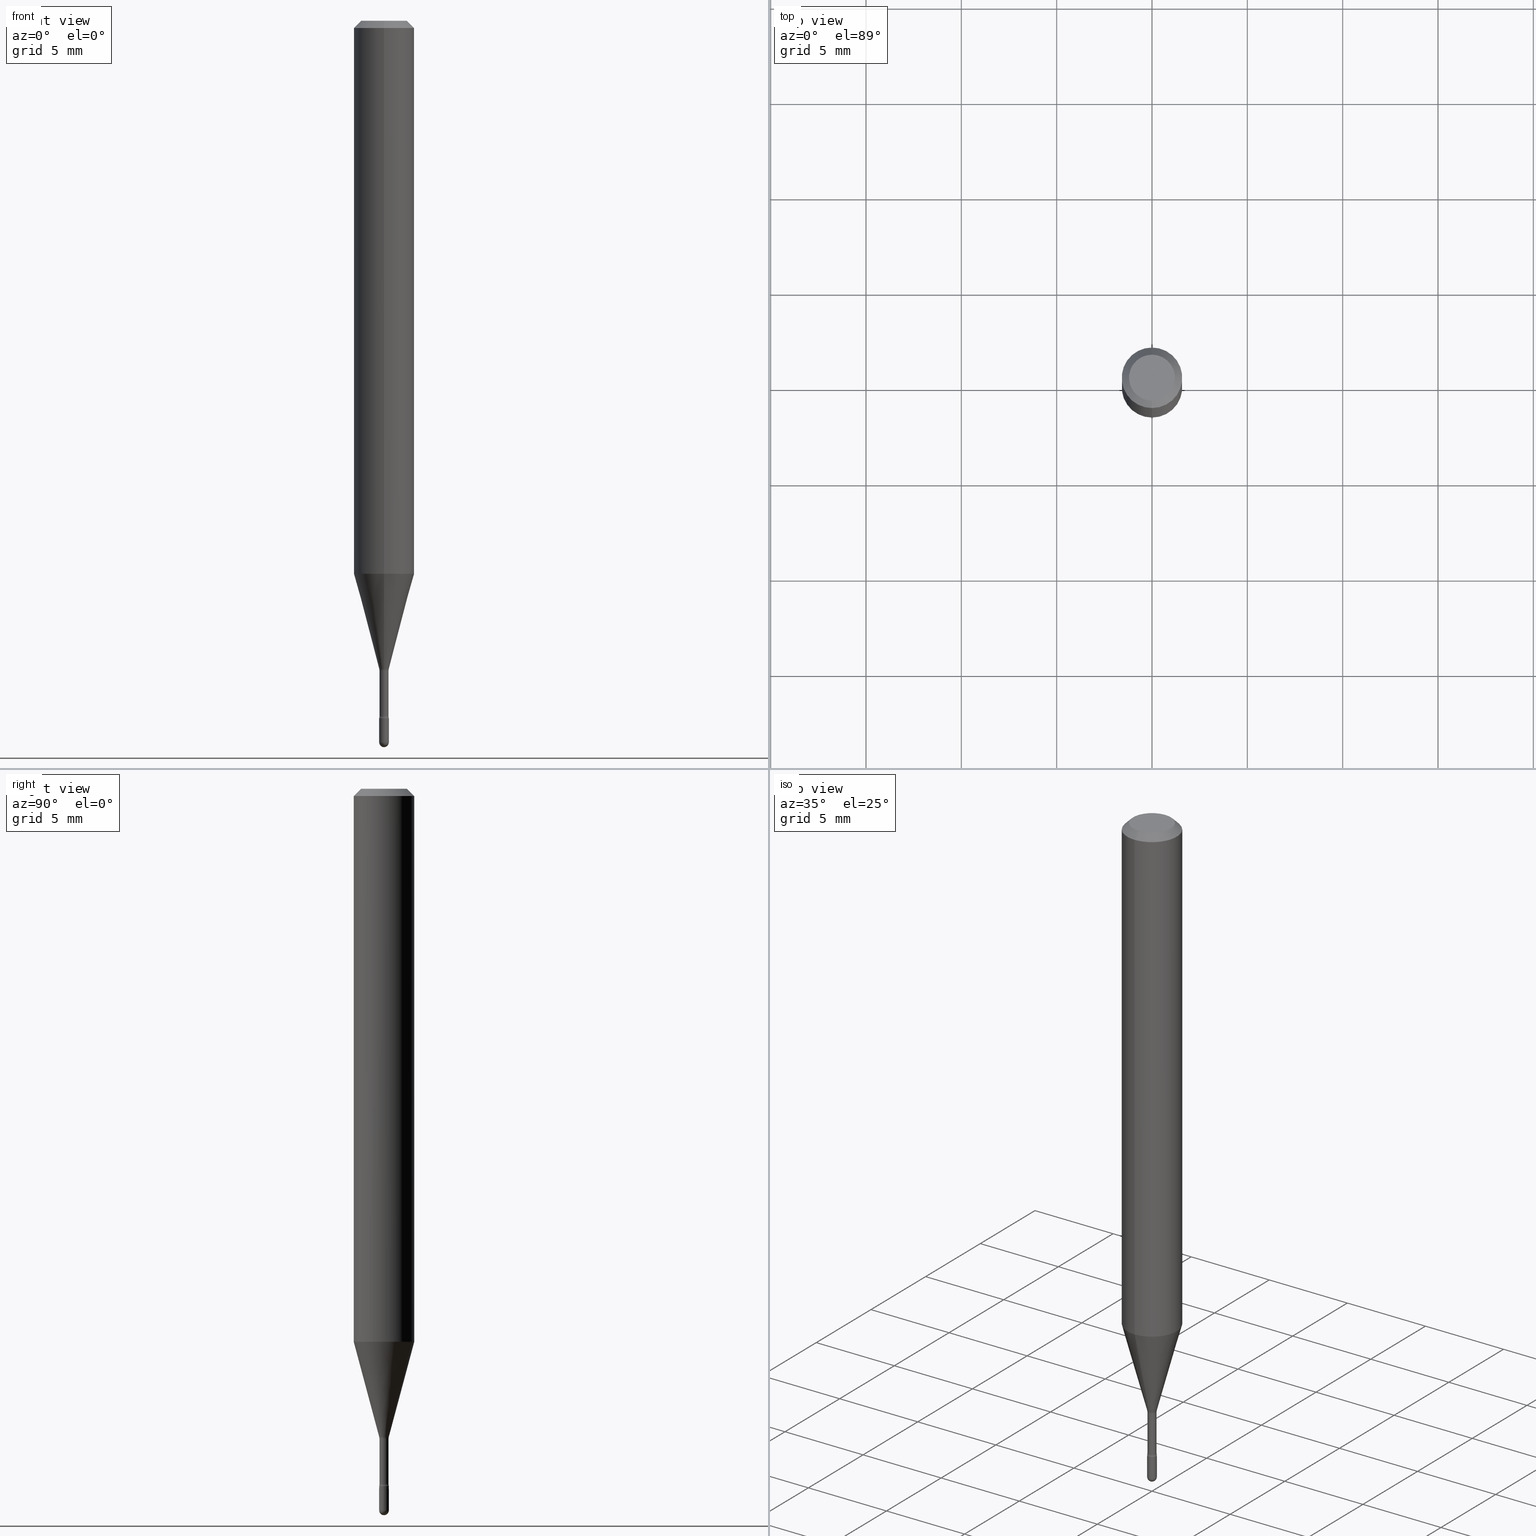
[diagram: canonical four-view strip — front | top / right | iso, engineering-drawing reading convention]
A machine part, canonical four-view strip (front | top / right | iso — engineering-drawing reading convention). The complete STEP part file that produces these views, byte-faithful:
ISO-10303-21;
HEADER;
FILE_DESCRIPTION (( 'STEP AP203' ),
    '1' );
FILE_NAME ('09303.STEP',
    '2024-04-09T22:17:44',
    ( '' ),
    ( '' ),
    'SwSTEP 2.0',
    'SolidWorks 2023',
    '' );
FILE_SCHEMA (( 'CONFIG_CONTROL_DESIGN' ));
ENDSEC;

DATA;
#1 = CARTESIAN_POINT ( 'NONE',  ( -3.773273898774340269E-16, -0.04749999999999999362, 8.309781393348443277E-17 ) ) ;
#2 = ORIENTED_EDGE ( 'NONE', *, *, #483, .F. ) ;
#3 = ORIENTED_EDGE ( 'NONE', *, *, #20, .T. ) ;
#4 = ORIENTED_EDGE ( 'NONE', *, *, #99, .F. ) ;
#5 = ORIENTED_EDGE ( 'NONE', *, *, #40, .F. ) ;
#6 = DIRECTION ( 'NONE',  ( 7.105427357601000281E-15, 1.000000000000000000, 0.000000000000000000 ) ) ;
#7 = ORIENTED_EDGE ( 'NONE', *, *, #388, .F. ) ;
#8 = ADVANCED_FACE ( 'NONE', ( #500 ), #180, .T. ) ;
#9 = VECTOR ( 'NONE', #56, 39.37007874015748143 ) ;
#10 = CIRCLE ( 'NONE', #287, 0.01500000000000002720 ) ;
#11 = CARTESIAN_POINT ( 'NONE',  ( 3.643748521215853910E-29, -5.202307194876288105E-15, -1.490000000000000213 ) ) ;
#12 = ORIENTED_EDGE ( 'NONE', *, *, #273, .T. ) ;
#13 = ORIENTED_EDGE ( 'NONE', *, *, #63, .F. ) ;
#14 = DIRECTION ( 'NONE',  ( -6.982962677686265922E-15, -1.000000000000000000, 4.370956789862821150E-15 ) ) ;
#15 = PERSON_AND_ORGANIZATION_ROLE ( 'classification_officer' ) ;
#16 = EDGE_CURVE ( 'NONE', #125, #86, #222, .T. ) ;
#17 = DIRECTION ( 'NONE',  ( 1.000000000000000000, -6.982962677686265922E-15, 4.876176775795935793E-29 ) ) ;
#18 = TOROIDAL_SURFACE ( 'NONE', #306, 0.02440000000000002583, 0.01500000000000004108 ) ;
#19 = VECTOR ( 'NONE', #561, 39.37007874015748143 ) ;
#20 = EDGE_CURVE ( 'NONE', #350, #94, #62, .T. ) ;
#21 = CARTESIAN_POINT ( 'NONE',  ( 3.511209574477321282E-29, -5.013061083618882892E-15, -1.435799999999999965 ) ) ;
#22 = DIRECTION ( 'NONE',  ( -2.445468806185136597E-29, 3.491481338843145583E-15, 1.000000000000000000 ) ) ;
#23 = COORDINATED_UNIVERSAL_TIME_OFFSET ( 5, 0, .BEHIND. ) ;
#24 = DIRECTION ( 'NONE',  ( -1.000000000000000000, 6.982962677686265133E-15, -4.883557194083112340E-29 ) ) ;
#25 = APPROVAL_DATE_TIME ( #108, #157 ) ;
#26 = EDGE_CURVE ( 'NONE', #217, #350, #147, .T. ) ;
#27 = COORDINATED_UNIVERSAL_TIME_OFFSET ( 5, 0, .BEHIND. ) ;
#28 = AXIS2_PLACEMENT_3D ( 'NONE', #560, #329, #553 ) ;
#29 = AXIS2_PLACEMENT_3D ( 'NONE', #512, #244, #332 ) ;
#30 = FACE_OUTER_BOUND ( 'NONE', #206, .T. ) ;
#31 = CARTESIAN_POINT ( 'NONE',  ( 6.892264536876495998E-17, 0.009399999999994973141, -1.435799999999999965 ) ) ;
#32 = ORIENTED_EDGE ( 'NONE', *, *, #470, .F. ) ;
#33 = CARTESIAN_POINT ( 'NONE',  ( -1.169113584055446105E-44, 1.669184350826100908E-30, 4.780733988912460139E-16 ) ) ;
#34 = VECTOR ( 'NONE', #379, 39.37007874015748143 ) ;
#35 = ORIENTED_EDGE ( 'NONE', *, *, #514, .T. ) ;
#36 = CIRCLE ( 'NONE', #262, 0.01000000000000000021 ) ;
#37 = CARTESIAN_POINT ( 'NONE',  ( 2.572559502513361655E-16, 0.009911112605659307129, -1.338092501787273347 ) ) ;
#38 = ORIENTED_EDGE ( 'NONE', *, *, #130, .T. ) ;
#39 = EDGE_LOOP ( 'NONE', ( #3, #471, #385, #174 ) ) ;
#40 = EDGE_CURVE ( 'NONE', #519, #526, #535, .T. ) ;
#41 = DIRECTION ( 'NONE',  ( 1.000000000000000000, -6.982962677686235945E-15, 0.000000000000000000 ) ) ;
#42 = ORIENTED_EDGE ( 'NONE', *, *, #283, .T. ) ;
#43 = EDGE_LOOP ( 'NONE', ( #218, #302, #337, #76 ) ) ;
#44 = AXIS2_PLACEMENT_3D ( 'NONE', #331, #564, #468 ) ;
#45 = ORIENTED_EDGE ( 'NONE', *, *, #343, .T. ) ;
#46 = ORIENTED_EDGE ( 'NONE', *, *, #242, .F. ) ;
#47 = VERTEX_POINT ( 'NONE', #441 ) ;
#48 = DIRECTION ( 'NONE',  ( -2.445472610723861690E-29, 3.491475890527150421E-15, 1.000000000000000000 ) ) ;
#49 = PERSON_AND_ORGANIZATION_ROLE ( 'design_supplier' ) ;
#50 =( LENGTH_UNIT ( ) NAMED_UNIT ( * ) SI_UNIT ( $, .METRE. ) );
#51 = TOROIDAL_SURFACE ( 'NONE', #123, 0.02440000000000002583, 0.01500000000000004108 ) ;
#52 = DIRECTION ( 'NONE',  ( -2.445468806185136597E-29, 3.491481338843145583E-15, 1.000000000000000000 ) ) ;
#53 = CIRCLE ( 'NONE', #373, 0.009399999999999998634 ) ;
#54 = EDGE_LOOP ( 'NONE', ( #4, #7, #168, #12 ) ) ;
#55 = CARTESIAN_POINT ( 'NONE',  ( 3.643748521215853910E-29, -5.202307194876288105E-15, -1.490000000000000213 ) ) ;
#56 = DIRECTION ( 'NONE',  ( -2.445472610723861690E-29, 3.491475890527150815E-15, 1.000000000000000000 ) ) ;
#57 = SECURITY_CLASSIFICATION_LEVEL ( 'unclassified' ) ;
#58 = CARTESIAN_POINT ( 'NONE',  ( 3.511209574477321282E-29, -5.013061083618882892E-15, -1.435799999999999965 ) ) ;
#59 = COORDINATED_UNIVERSAL_TIME_OFFSET ( 5, 0, .BEHIND. ) ;
#60 = CARTESIAN_POINT ( 'NONE',  ( -6.563984917025085146E-17, -0.009399999999999993430, 5.108932722622012400E-16 ) ) ;
#61 = CALENDAR_DATE ( 2024, 9, 4 ) ;
#62 = CIRCLE ( 'NONE', #506, 0.06250000000000000000 ) ;
#63 = EDGE_CURVE ( 'NONE', #217, #258, #114, .T. ) ;
#64 = EDGE_CURVE ( 'NONE', #344, #481, #192, .T. ) ;
#65 = CALENDAR_DATE ( 2024, 9, 4 ) ;
#66 = CC_DESIGN_SECURITY_CLASSIFICATION ( #98, ( #158 ) ) ;
#67 = MANIFOLD_SOLID_BREP ( 'Body-Move/Copy2[2]', #364 ) ;
#68 = PLANE ( 'NONE',  #109 ) ;
#69 = PERSON_AND_ORGANIZATION_ROLE ( 'design_owner' ) ;
#70 = AXIS2_PLACEMENT_3D ( 'NONE', #111, #459, #233 ) ;
#71 = LINE ( 'NONE', #241, #181 ) ;
#72 = PERSON_AND_ORGANIZATION ( #234, #198 ) ;
#73 = DIRECTION ( 'NONE',  ( -2.445472610723861690E-29, 3.491475890527150421E-15, 1.000000000000000000 ) ) ;
#74 = CARTESIAN_POINT ( 'NONE',  ( 3.521480559442361462E-29, -5.027725282359097426E-15, -1.440000000000000169 ) ) ;
#75 = CC_DESIGN_PERSON_AND_ORGANIZATION_ASSIGNMENT ( #72, #159, ( #305 ) ) ;
#76 = ORIENTED_EDGE ( 'NONE', *, *, #26, .F. ) ;
#77 = CC_DESIGN_APPROVAL ( #196, ( #305 ) ) ;
#78 = ORIENTED_EDGE ( 'NONE', *, *, #283, .F. ) ;
#79 = CARTESIAN_POINT ( 'NONE',  ( -4.364351673553637142E-16, -0.06250000000000398293, -1.141828102118092936 ) ) ;
#80 = DIRECTION ( 'NONE',  ( 1.000000000000000000, 0.000000000000000000, 0.000000000000000000 ) ) ;
#81 = CARTESIAN_POINT ( 'NONE',  ( 4.364351673553919652E-16, 0.06249999999999995143, -0.01500000000000030129 ) ) ;
#82 = ORIENTED_EDGE ( 'NONE', *, *, #470, .T. ) ;
#83 = FACE_OUTER_BOUND ( 'NONE', #338, .T. ) ;
#84 = DIRECTION ( 'NONE',  ( -2.445468806185136597E-29, 3.491481338843145583E-15, 1.000000000000000000 ) ) ;
#85 = PERSON_AND_ORGANIZATION ( #234, #198 ) ;
#86 = VERTEX_POINT ( 'NONE', #179 ) ;
#87 = EDGE_CURVE ( 'NONE', #86, #393, #294, .T. ) ;
#88 = VERTEX_POINT ( 'NONE', #559 ) ;
#89 = AXIS2_PLACEMENT_3D ( 'NONE', #486, #563, #6 ) ;
#90 = ORIENTED_EDGE ( 'NONE', *, *, #514, .F. ) ;
#91 = APPROVAL_PERSON_ORGANIZATION ( #85, #196, #525 ) ;
#92 = CARTESIAN_POINT ( 'NONE',  ( 3.643748521215853910E-29, -5.202307194876288105E-15, -1.490000000000000213 ) ) ;
#93 = EDGE_LOOP ( 'NONE', ( #46, #177, #396, #251 ) ) ;
#94 = VERTEX_POINT ( 'NONE', #169 ) ;
#95 = DIMENSIONAL_EXPONENTS ( 1.000000000000000000, 0.000000000000000000, 0.000000000000000000, 0.000000000000000000, 0.000000000000000000, 0.000000000000000000, 0.000000000000000000 ) ;
#96 = CC_DESIGN_PERSON_AND_ORGANIZATION_ASSIGNMENT ( #227, #15, ( #98 ) ) ;
#97 = EDGE_LOOP ( 'NONE', ( #176, #127, #264, #32 ) ) ;
#98 = SECURITY_CLASSIFICATION ( '', '', #57 ) ;
#99 = EDGE_CURVE ( 'NONE', #121, #310, #394, .T. ) ;
#100 = APPROVAL_ROLE ( '' ) ;
#101 = DIRECTION ( 'NONE',  ( 6.982962677686265922E-15, 1.000000000000000000, -3.483106191921935554E-15 ) ) ;
#102 = COORDINATED_UNIVERSAL_TIME_OFFSET ( 5, 0, .BEHIND. ) ;
#103 = DIRECTION ( 'NONE',  ( -2.445472610723861690E-29, 3.491475890527150421E-15, 1.000000000000000000 ) ) ;
#104 = EDGE_CURVE ( 'NONE', #397, #526, #53, .T. ) ;
#105 = DIRECTION ( 'NONE',  ( -2.445472610723861130E-29, 3.491475890527150815E-15, 1.000000000000000000 ) ) ;
#106 = PRODUCT_RELATED_PRODUCT_CATEGORY ( 'detail', '', ( #376 ) ) ;
#107 = VECTOR ( 'NONE', #119, 39.37007874015748143 ) ;
#108 = DATE_AND_TIME ( #504, #550 ) ;
#109 = AXIS2_PLACEMENT_3D ( 'NONE', #543, #322, #195 ) ;
#110 = PERSON_AND_ORGANIZATION ( #234, #198 ) ;
#111 = CARTESIAN_POINT ( 'NONE',  ( 3.521475080906597305E-29, -5.027733127934130649E-15, -1.440000000000000169 ) ) ;
#112 = SHAPE_DEFINITION_REPRESENTATION ( #511, #473 ) ;
#113 = DIRECTION ( 'NONE',  ( -6.982962677686265922E-15, -1.000000000000000000, 3.491475890527151998E-15 ) ) ;
#114 = CIRCLE ( 'NONE', #261, 0.009911112605663978739 ) ;
#115 = CARTESIAN_POINT ( 'NONE',  ( 4.440892098500625669E-16, 0.06250000000000000000, 2.598561557332991619E-16 ) ) ;
#116 = CIRCLE ( 'NONE', #70, 0.01000000000000000021 ) ;
#117 = DIRECTION ( 'NONE',  ( -2.445472610723861690E-29, 3.491475890527150815E-15, 1.000000000000000000 ) ) ;
#118 = ADVANCED_FACE ( 'NONE', ( #83 ), #448, .T. ) ;
#119 = DIRECTION ( 'NONE',  ( -2.445472610723861690E-29, 3.491475890527150815E-15, 1.000000000000000000 ) ) ;
#120 = ORIENTED_EDGE ( 'NONE', *, *, #440, .T. ) ;
#121 = VERTEX_POINT ( 'NONE', #1 ) ;
#122 = CARTESIAN_POINT ( 'NONE',  ( 0.000000000000000000, 0.000000000000000000, 0.000000000000000000 ) ) ;
#123 = AXIS2_PLACEMENT_3D ( 'NONE', #228, #279, #489 ) ;
#124 =( GEOMETRIC_REPRESENTATION_CONTEXT ( 3 ) GLOBAL_UNCERTAINTY_ASSIGNED_CONTEXT ( ( #282 ) ) GLOBAL_UNIT_ASSIGNED_CONTEXT ( ( #276, #444, #185 ) ) REPRESENTATION_CONTEXT ( 'NONE', 'WORKASPACE' ) );
#125 = VERTEX_POINT ( 'NONE', #443 ) ;
#126 = AXIS2_PLACEMENT_3D ( 'NONE', #415, #200, #113 ) ;
#127 = ORIENTED_EDGE ( 'NONE', *, *, #375, .T. ) ;
#128 = CARTESIAN_POINT ( 'NONE',  ( 6.679101716144935847E-17, 0.009399999999999993430, 4.452535255202908864E-16 ) ) ;
#129 = EDGE_LOOP ( 'NONE', ( #435, #45, #558, #175 ) ) ;
#130 = EDGE_CURVE ( 'NONE', #258, #217, #399, .T. ) ;
#131 = ORIENTED_EDGE ( 'NONE', *, *, #510, .F. ) ;
#132 = VERTEX_POINT ( 'NONE', #475 ) ;
#133 = AXIS2_PLACEMENT_3D ( 'NONE', #55, #224, #267 ) ;
#134 = VECTOR ( 'NONE', #552, 39.37007874015748143 ) ;
#135 = ADVANCED_FACE ( 'NONE', ( #529 ), #18, .F. ) ;
#136 = ORIENTED_EDGE ( 'NONE', *, *, #528, .T. ) ;
#137 = CARTESIAN_POINT ( 'NONE',  ( 4.440892098500906207E-16, 0.06249999999999993755, -0.01500000000000030129 ) ) ;
#138 = DESIGN_CONTEXT ( 'detailed design', #445, 'design' ) ;
#139 = EDGE_CURVE ( 'NONE', #47, #132, #408, .T. ) ;
#140 = ORIENTED_EDGE ( 'NONE', *, *, #16, .F. ) ;
#141 = CARTESIAN_POINT ( 'NONE',  ( 3.281757481429678345E-29, -4.685479927627892670E-15, -1.341974787463811269 ) ) ;
#142 = CARTESIAN_POINT ( 'NONE',  ( -1.169113584055446105E-44, 1.669184350826100908E-30, 4.780733988912460139E-16 ) ) ;
#143 = AXIS2_PLACEMENT_3D ( 'NONE', #11, #490, #184 ) ;
#144 = CARTESIAN_POINT ( 'NONE',  ( 3.511204111920619566E-29, -5.013068906310988441E-15, -1.435799999999999965 ) ) ;
#145 = EDGE_LOOP ( 'NONE', ( #347, #499, #522, #263 ) ) ;
#146 = CC_DESIGN_APPROVAL ( #352, ( #98 ) ) ;
#147 = LINE ( 'NONE', #278, #354 ) ;
#148 = DIRECTION ( 'NONE',  ( -1.000000000000000000, 6.982962677686265922E-15, -4.883557194083112340E-29 ) ) ;
#149 = EDGE_CURVE ( 'NONE', #538, #88, #372, .T. ) ;
#150 = CARTESIAN_POINT ( 'NONE',  ( 6.982962677689787249E-17, 0.009999999999994971245, -1.440000000000000169 ) ) ;
#151 = LENGTH_MEASURE_WITH_UNIT ( LENGTH_MEASURE( 0.02539999999999999897 ), #50 );
#152 = DATE_AND_TIME ( #324, #400 ) ;
#153 = CALENDAR_DATE ( 2024, 9, 4 ) ;
#154 = CARTESIAN_POINT ( 'NONE',  ( 7.105427357604537090E-17, 0.009999999999994993796, -1.440000000000000169 ) ) ;
#155 = AXIS2_PLACEMENT_3D ( 'NONE', #367, #52, #493 ) ;
#156 = FACE_OUTER_BOUND ( 'NONE', #97, .T. ) ;
#157 = APPROVAL ( #231, 'UNSPECIFIED' ) ;
#158 = PRODUCT_DEFINITION_FORMATION_WITH_SPECIFIED_SOURCE ( 'ANY', '', #376, .NOT_KNOWN. ) ;
#159 = PERSON_AND_ORGANIZATION_ROLE ( 'creator' ) ;
#160 = CARTESIAN_POINT ( 'NONE',  ( -4.364351673553912750E-16, -0.06250000000000005551, -0.01499999999999986587 ) ) ;
#161 = CARTESIAN_POINT ( 'NONE',  ( 3.281762587024725680E-29, -4.685472616125192848E-15, -1.341974787463811269 ) ) ;
#162 = COORDINATED_UNIVERSAL_TIME_OFFSET ( 5, 0, .BEHIND. ) ;
#163 = AXIS2_PLACEMENT_3D ( 'NONE', #309, #22, #502 ) ;
#164 = TOROIDAL_SURFACE ( 'NONE', #272, 0.02440000000000000155, 0.01500000000000002720 ) ;
#165 = DIRECTION ( 'NONE',  ( -6.982962677686266711E-15, -1.000000000000000000, 3.491475890527150421E-15 ) ) ;
#166 = ORIENTED_EDGE ( 'NONE', *, *, #375, .F. ) ;
#167 = DIRECTION ( 'NONE',  ( 1.000000000000000000, -6.982962677686265922E-15, 4.883557194083112340E-29 ) ) ;
#168 = ORIENTED_EDGE ( 'NONE', *, *, #545, .T. ) ;
#169 = CARTESIAN_POINT ( 'NONE',  ( 4.440892098500903249E-16, 0.06249999999999600320, -1.141828102118093602 ) ) ;
#170 = CC_DESIGN_PERSON_AND_ORGANIZATION_ASSIGNMENT ( #110, #49, ( #158 ) ) ;
#171 = MECHANICAL_CONTEXT ( 'NONE', #465, 'mechanical' ) ;
#172 = CIRCLE ( 'NONE', #565, 0.009999999999999946432 ) ;
#173 = TOROIDAL_SURFACE ( 'NONE', #193, 0.02440000000000000155, 0.01500000000000002720 ) ;
#174 = ORIENTED_EDGE ( 'NONE', *, *, #225, .F. ) ;
#175 = ORIENTED_EDGE ( 'NONE', *, *, #273, .F. ) ;
#176 = ORIENTED_EDGE ( 'NONE', *, *, #130, .F. ) ;
#177 = ORIENTED_EDGE ( 'NONE', *, *, #207, .T. ) ;
#178 = ADVANCED_FACE ( 'NONE', ( #544 ), #51, .F. ) ;
#179 = CARTESIAN_POINT ( 'NONE',  ( -7.105427357597337501E-17, -0.01000000000000517836, -1.490000000000000213 ) ) ;
#180 = CONICAL_SURFACE ( 'NONE', #246, 0.06250000000000000000, 0.7853981633974483900 ) ;
#181 = VECTOR ( 'NONE', #202, 39.37007874015748143 ) ;
#182 = ADVANCED_FACE ( 'NONE', ( #407 ), #221, .T. ) ;
#183 = CARTESIAN_POINT ( 'NONE',  ( 0.000000000000000000, 0.000000000000000000, 0.000000000000000000 ) ) ;
#184 = DIRECTION ( 'NONE',  ( -7.105427357601000281E-15, -1.000000000000000000, 0.000000000000000000 ) ) ;
#185 =( NAMED_UNIT ( * ) SI_UNIT ( $, .STERADIAN. ) SOLID_ANGLE_UNIT ( ) );
#186 = VERTEX_POINT ( 'NONE', #451 ) ;
#187 = EDGE_CURVE ( 'NONE', #132, #86, #197, .T. ) ;
#188 = CARTESIAN_POINT ( 'NONE',  ( 2.792309349884605750E-29, -3.986665289671695629E-15, -1.141828102118093380 ) ) ;
#189 = DATE_AND_TIME ( #61, #496 ) ;
#190 = DIRECTION ( 'NONE',  ( 6.982962677686265922E-15, 1.000000000000000000, -3.491475890527150815E-15 ) ) ;
#191 = DIRECTION ( 'NONE',  ( 2.445472610723861690E-29, -3.491475890527150421E-15, -1.000000000000000000 ) ) ;
#192 = CIRCLE ( 'NONE', #89, 0.01500000000000004455 ) ;
#193 = AXIS2_PLACEMENT_3D ( 'NONE', #141, #235, #317 ) ;
#194 = DIRECTION ( 'NONE',  ( -2.445472610723861690E-29, 3.491475890527150421E-15, 1.000000000000000000 ) ) ;
#195 = DIRECTION ( 'NONE',  ( 1.000000000000000000, -6.982962677686265922E-15, 4.876176775795935793E-29 ) ) ;
#196 = APPROVAL ( #349, 'UNSPECIFIED' ) ;
#197 = CIRCLE ( 'NONE', #133, 0.01000000000000000021 ) ;
#198 = ORGANIZATION ( 'UNSPECIFIED', 'UNSPECIFIED', '' ) ;
#199 = DIRECTION ( 'NONE',  ( 6.982962677686265922E-15, 1.000000000000000000, -3.483106191921935554E-15 ) ) ;
#200 = DIRECTION ( 'NONE',  ( -2.445472610723861690E-29, 3.491475890527150421E-15, 1.000000000000000000 ) ) ;
#201 = ADVANCED_FACE ( 'NONE', ( #226 ), #362, .T. ) ;
#202 = DIRECTION ( 'NONE',  ( -2.445468806185136877E-29, 3.491481338843145188E-15, 1.000000000000000000 ) ) ;
#203 = FACE_OUTER_BOUND ( 'NONE', #145, .T. ) ;
#204 = AXIS2_PLACEMENT_3D ( 'NONE', #58, #48, #398 ) ;
#205 = AXIS2_PLACEMENT_3D ( 'NONE', #383, #247, #165 ) ;
#206 = EDGE_LOOP ( 'NONE', ( #316, #292, #403, #5 ) ) ;
#207 = EDGE_CURVE ( 'NONE', #344, #519, #457, .T. ) ;
#208 = DIRECTION ( 'NONE',  ( -2.445472610723861690E-29, 3.491475890527150421E-15, 1.000000000000000000 ) ) ;
#209 = DIRECTION ( 'NONE',  ( -6.982962677686265922E-15, -1.000000000000000000, 3.483106191921935554E-15 ) ) ;
#210 = VERTEX_POINT ( 'NONE', #137 ) ;
#211 = DIRECTION ( 'NONE',  ( 6.982962677686265922E-15, 1.000000000000000000, 0.000000000000000000 ) ) ;
#212 = EDGE_LOOP ( 'NONE', ( #447, #484, #136, #439 ) ) ;
#213 = DIRECTION ( 'NONE',  ( -6.982962677686265922E-15, -1.000000000000000000, 0.000000000000000000 ) ) ;
#214 = AXIS2_PLACEMENT_3D ( 'NONE', #92, #265, #41 ) ;
#215 = AXIS2_PLACEMENT_3D ( 'NONE', #284, #24, #404 ) ;
#216 = ORIENTED_EDGE ( 'NONE', *, *, #207, .F. ) ;
#217 = VERTEX_POINT ( 'NONE', #356 ) ;
#218 = ORIENTED_EDGE ( 'NONE', *, *, #63, .T. ) ;
#219 = CARTESIAN_POINT ( 'NONE',  ( 3.281762587024725680E-29, -4.685472616125192848E-15, -1.341974787463811269 ) ) ;
#220 = CC_DESIGN_PERSON_AND_ORGANIZATION_ASSIGNMENT ( #461, #69, ( #376 ) ) ;
#221 = CYLINDRICAL_SURFACE ( 'NONE', #381, 0.06250000000000000000 ) ;
#222 = CIRCLE ( 'NONE', #143, 0.009999999999999946432 ) ;
#223 = APPROVAL_PERSON_ORGANIZATION ( #456, #157, #413 ) ;
#224 = DIRECTION ( 'NONE',  ( -2.445468806185136597E-29, 3.491481338843145583E-15, 1.000000000000000000 ) ) ;
#225 = EDGE_CURVE ( 'NONE', #350, #310, #269, .T. ) ;
#226 = FACE_OUTER_BOUND ( 'NONE', #297, .T. ) ;
#227 = PERSON_AND_ORGANIZATION ( #234, #198 ) ;
#228 = CARTESIAN_POINT ( 'NONE',  ( 3.511204111920619566E-29, -5.013068906310988441E-15, -1.435799999999999965 ) ) ;
#229 = ADVANCED_FACE ( 'NONE', ( #203 ), #424, .T. ) ;
#230 = AXIS2_PLACEMENT_3D ( 'NONE', #237, #416, #199 ) ;
#231 = APPROVAL_STATUS ( 'not_yet_approved' ) ;
#232 = CARTESIAN_POINT ( 'NONE',  ( 3.668208916085812311E-31, -5.237213835790754425E-17, -0.01500000000000008271 ) ) ;
#233 = DIRECTION ( 'NONE',  ( 1.000000000000000000, -6.982962677686235945E-15, 0.000000000000000000 ) ) ;
#234 = PERSON ( 'UNSPECIFIED', 'UNSPECIFIED', 'UNSPECIFIED', ('UNSPECIFIED'), ('UNSPECIFIED'), ('UNSPECIFIED') ) ;
#235 = DIRECTION ( 'NONE',  ( -2.445472610723861690E-29, 3.491475890527150421E-15, 1.000000000000000000 ) ) ;
#236 = APPROVAL_DATE_TIME ( #505, #352 ) ;
#237 = CARTESIAN_POINT ( 'NONE',  ( 3.668208916085812311E-31, -5.237213835790754425E-17, -0.01500000000000008271 ) ) ;
#238 = AXIS2_PLACEMENT_3D ( 'NONE', #33, #73, #377 ) ;
#239 = AXIS2_PLACEMENT_3D ( 'NONE', #150, #105, #509 ) ;
#240 = PLANE ( 'NONE',  #239 ) ;
#241 = CARTESIAN_POINT ( 'NONE',  ( -0.01000000000000000021, 7.105427357601002007E-17, -4.918935090254906272E-31 ) ) ;
#242 = EDGE_CURVE ( 'NONE', #344, #397, #257, .T. ) ;
#243 = DIRECTION ( 'NONE',  ( -2.445472610723861690E-29, 3.491475890527150421E-15, 1.000000000000000000 ) ) ;
#244 = DIRECTION ( 'NONE',  ( -2.445472610723861690E-29, 3.491475890527150421E-15, 1.000000000000000000 ) ) ;
#245 = EDGE_CURVE ( 'NONE', #125, #47, #172, .T. ) ;
#246 = AXIS2_PLACEMENT_3D ( 'NONE', #532, #191, #101 ) ;
#247 = DIRECTION ( 'NONE',  ( -2.445472610723861690E-29, 3.491475890527150421E-15, 1.000000000000000000 ) ) ;
#248 = CONICAL_SURFACE ( 'NONE', #230, 0.06250000000000000000, 0.7853981633974483900 ) ;
#249 = CARTESIAN_POINT ( 'NONE',  ( 3.643748521215853910E-29, -5.202307194876288105E-15, -1.490000000000000213 ) ) ;
#250 = EDGE_LOOP ( 'NONE', ( #166, #13, #82, #566 ) ) ;
#251 = ORIENTED_EDGE ( 'NONE', *, *, #104, .F. ) ;
#252 = CARTESIAN_POINT ( 'NONE',  ( 3.668208916085812311E-31, -5.237213835790754425E-17, -0.01500000000000008271 ) ) ;
#253 = ORIENTED_EDGE ( 'NONE', *, *, #510, .T. ) ;
#254 = EDGE_LOOP ( 'NONE', ( #140, #277, #521, #488 ) ) ;
#255 = ORIENTED_EDGE ( 'NONE', *, *, #149, .F. ) ;
#256 = DIRECTION ( 'NONE',  ( -6.982962677686265922E-15, -1.000000000000000000, 0.000000000000000000 ) ) ;
#257 = LINE ( 'NONE', #128, #34 ) ;
#258 = VERTEX_POINT ( 'NONE', #37 ) ;
#259 = ORIENTED_EDGE ( 'NONE', *, *, #503, .T. ) ;
#260 = DIRECTION ( 'NONE',  ( -4.851104656540964275E-15, -0.7071067811865500152, -0.7071067811865450192 ) ) ;
#261 = AXIS2_PLACEMENT_3D ( 'NONE', #298, #386, #524 ) ;
#262 = AXIS2_PLACEMENT_3D ( 'NONE', #249, #433, #387 ) ;
#263 = ORIENTED_EDGE ( 'NONE', *, *, #139, .F. ) ;
#264 = ORIENTED_EDGE ( 'NONE', *, *, #104, .T. ) ;
#265 = DIRECTION ( 'NONE',  ( -2.445468806185136597E-29, 3.491481338843145583E-15, 1.000000000000000000 ) ) ;
#266 = ORIENTED_EDGE ( 'NONE', *, *, #87, .T. ) ;
#267 = DIRECTION ( 'NONE',  ( 1.000000000000000000, -6.982962677686235945E-15, 0.000000000000000000 ) ) ;
#268 = EDGE_CURVE ( 'NONE', #94, #210, #556, .T. ) ;
#269 = LINE ( 'NONE', #446, #107 ) ;
#270 = PERSON_AND_ORGANIZATION_ROLE ( 'creator' ) ;
#271 = AXIS2_PLACEMENT_3D ( 'NONE', #183, #442, #17 ) ;
#272 = AXIS2_PLACEMENT_3D ( 'NONE', #429, #208, #551 ) ;
#273 = EDGE_CURVE ( 'NONE', #210, #310, #280, .T. ) ;
#274 = DIRECTION ( 'NONE',  ( -2.445472610723861690E-29, 3.491475890527150421E-15, 1.000000000000000000 ) ) ;
#275 = CARTESIAN_POINT ( 'NONE',  ( -1.703842893355120750E-16, -0.02440000000000468877, -1.341974787463811269 ) ) ;
#276 =( CONVERSION_BASED_UNIT ( 'INCH', #151 ) LENGTH_UNIT ( ) NAMED_UNIT ( #95 ) );
#277 = ORIENTED_EDGE ( 'NONE', *, *, #245, .T. ) ;
#278 = CARTESIAN_POINT ( 'NONE',  ( -6.920892941966471525E-17, -0.009911112605668652084, -1.338092501787273347 ) ) ;
#279 = DIRECTION ( 'NONE',  ( -2.445472610723861690E-29, 3.491475890527150421E-15, 1.000000000000000000 ) ) ;
#280 = CIRCLE ( 'NONE', #427, 0.06250000000000000000 ) ;
#281 = CIRCLE ( 'NONE', #296, 0.06250000000000000000 ) ;
#282 = UNCERTAINTY_MEASURE_WITH_UNIT (LENGTH_MEASURE( 1.000000000000000082E-05 ), #276, 'distance_accuracy_value', 'NONE');
#283 = EDGE_CURVE ( 'NONE', #186, #481, #474, .T. ) ;
#284 = CARTESIAN_POINT ( 'NONE',  ( 3.643748521215853910E-29, -5.202307194876288105E-15, -1.490000000000000213 ) ) ;
#285 = PERSON_AND_ORGANIZATION ( #234, #198 ) ;
#286 = ADVANCED_FACE ( 'NONE', ( #334 ), #479, .T. ) ;
#287 = AXIS2_PLACEMENT_3D ( 'NONE', #275, #406, #369 ) ;
#288 = DIRECTION ( 'NONE',  ( -2.445472610723861690E-29, 3.491475890527150421E-15, 1.000000000000000000 ) ) ;
#289 = CYLINDRICAL_SURFACE ( 'NONE', #238, 0.009399999999999993430 ) ;
#290 = ADVANCED_FACE ( 'NONE', ( #30 ), #289, .T. ) ;
#291 = CARTESIAN_POINT ( 'NONE',  ( 3.643748521215853910E-29, -5.202307194876288105E-15, -1.490000000000000213 ) ) ;
#292 = ORIENTED_EDGE ( 'NONE', *, *, #242, .T. ) ;
#293 = DIRECTION ( 'NONE',  ( -2.445472610723861690E-29, 3.491475890527150421E-15, 1.000000000000000000 ) ) ;
#294 = CIRCLE ( 'NONE', #214, 0.01000000000000000021 ) ;
#295 = LINE ( 'NONE', #517, #365 ) ;
#296 = AXIS2_PLACEMENT_3D ( 'NONE', #476, #288, #422 ) ;
#297 = EDGE_LOOP ( 'NONE', ( #391, #259, #2, #90, #534 ) ) ;
#298 = CARTESIAN_POINT ( 'NONE',  ( 3.272268563735746629E-29, -4.671917709285422195E-15, -1.338092501787273347 ) ) ;
#299 = FACE_OUTER_BOUND ( 'NONE', #250, .T. ) ;
#300 = ORIENTED_EDGE ( 'NONE', *, *, #318, .T. ) ;
#301 = FACE_OUTER_BOUND ( 'NONE', #304, .T. ) ;
#302 = ORIENTED_EDGE ( 'NONE', *, *, #330, .T. ) ;
#303 = ADVANCED_FACE ( 'NONE', ( #342 ), #313, .T. ) ;
#304 = EDGE_LOOP ( 'NONE', ( #346, #351 ) ) ;
#305 = PRODUCT_DEFINITION ( 'UNKNOWN', '', #158, #138 ) ;
#306 = AXIS2_PLACEMENT_3D ( 'NONE', #144, #194, #359 ) ;
#307 = AXIS2_PLACEMENT_3D ( 'NONE', #319, #542, #190 ) ;
#308 = ORIENTED_EDGE ( 'NONE', *, *, #330, .F. ) ;
#309 = CARTESIAN_POINT ( 'NONE',  ( 3.643748521215853910E-29, -5.202307194876288105E-15, -1.490000000000000213 ) ) ;
#310 = VERTEX_POINT ( 'NONE', #160 ) ;
#311 = CARTESIAN_POINT ( 'NONE',  ( 1.733724275254972434E-16, 0.02439999999999531433, -1.341974787463811269 ) ) ;
#312 = APPROVAL_STATUS ( 'not_yet_approved' ) ;
#313 = CONICAL_SURFACE ( 'NONE', #44, 0.009911112605663978739, 0.2617993877991500740 ) ;
#314 = DIRECTION ( 'NONE',  ( -6.982962677686265922E-15, -1.000000000000000000, 3.491475890527150421E-15 ) ) ;
#315 = APPROVAL_PERSON_ORGANIZATION ( #366, #352, #100 ) ;
#316 = ORIENTED_EDGE ( 'NONE', *, *, #467, .T. ) ;
#317 = DIRECTION ( 'NONE',  ( -6.982962677686265922E-15, -1.000000000000000000, 3.491475890527150421E-15 ) ) ;
#318 = EDGE_CURVE ( 'NONE', #121, #562, #494, .T. ) ;
#319 = CARTESIAN_POINT ( 'NONE',  ( 3.316907271900976096E-16, 0.04749999999999999362, 3.181794921230585497E-17 ) ) ;
#320 = ADVANCED_FACE ( 'NONE', ( #299 ), #164, .F. ) ;
#321 = DATE_AND_TIME ( #65, #410 ) ;
#322 = DIRECTION ( 'NONE',  ( -2.438088387897960049E-29, 3.491481338843145188E-15, 1.000000000000000000 ) ) ;
#323 = DIRECTION ( 'NONE',  ( 7.105427357601000281E-15, 1.000000000000000000, 0.000000000000000000 ) ) ;
#324 = CALENDAR_DATE ( 2024, 9, 4 ) ;
#325 = DIRECTION ( 'NONE',  ( 1.839019923739598738E-15, 0.2588190451025247363, 0.9659258262890673130 ) ) ;
#326 = AXIS2_PLACEMENT_3D ( 'NONE', #437, #353, #256 ) ;
#327 = AXIS2_PLACEMENT_3D ( 'NONE', #335, #477, #80 ) ;
#328 = DATE_TIME_ROLE ( 'creation_date' ) ;
#329 = DIRECTION ( 'NONE',  ( -1.000000000000000000, 6.982962677686265133E-15, -4.883557194083112340E-29 ) ) ;
#330 = EDGE_CURVE ( 'NONE', #258, #94, #295, .T. ) ;
#331 = CARTESIAN_POINT ( 'NONE',  ( 3.272268563735746629E-29, -4.671917709285422195E-15, -1.338092501787273347 ) ) ;
#332 = DIRECTION ( 'NONE',  ( -6.982962677686265922E-15, -1.000000000000000000, 0.000000000000000000 ) ) ;
#333 = EDGE_LOOP ( 'NONE', ( #434, #536, #266, #35, #255 ) ) ;
#334 = FACE_OUTER_BOUND ( 'NONE', #333, .T. ) ;
#335 = CARTESIAN_POINT ( 'NONE',  ( 0.000000000000000000, 0.000000000000000000, 0.000000000000000000 ) ) ;
#336 = CARTESIAN_POINT ( 'NONE',  ( 3.840629472727447874E-16, 0.04749999999999999362, -2.485923956665948360E-16 ) ) ;
#337 = ORIENTED_EDGE ( 'NONE', *, *, #20, .F. ) ;
#338 = EDGE_LOOP ( 'NONE', ( #308, #38, #423, #430 ) ) ;
#339 = AXIS2_PLACEMENT_3D ( 'NONE', #74, #431, #464 ) ;
#340 = DIRECTION ( 'NONE',  ( -2.445472610723861690E-29, 3.491475890527150421E-15, 1.000000000000000000 ) ) ;
#341 = CC_DESIGN_APPROVAL ( #157, ( #158 ) ) ;
#342 = FACE_OUTER_BOUND ( 'NONE', #43, .T. ) ;
#343 = EDGE_CURVE ( 'NONE', #94, #350, #281, .T. ) ;
#344 = VERTEX_POINT ( 'NONE', #31 ) ;
#345 = CARTESIAN_POINT ( 'NONE',  ( -4.287811248607203282E-16, -0.06250000000000005551, -0.01499999999999986587 ) ) ;
#346 = ORIENTED_EDGE ( 'NONE', *, *, #483, .T. ) ;
#347 = ORIENTED_EDGE ( 'NONE', *, *, #245, .F. ) ;
#348 = DIRECTION ( 'NONE',  ( -6.982962677686265922E-15, -1.000000000000000000, 0.000000000000000000 ) ) ;
#349 = APPROVAL_STATUS ( 'not_yet_approved' ) ;
#350 = VERTEX_POINT ( 'NONE', #79 ) ;
#351 = ORIENTED_EDGE ( 'NONE', *, *, #149, .T. ) ;
#352 = APPROVAL ( #312, 'UNSPECIFIED' ) ;
#353 = DIRECTION ( 'NONE',  ( -2.445472610723861690E-29, 3.491475890527150421E-15, 1.000000000000000000 ) ) ;
#354 = VECTOR ( 'NONE', #360, 39.37007874015748854 ) ;
#355 = CIRCLE ( 'NONE', #450, 0.06250000000000000000 ) ;
#356 = CARTESIAN_POINT ( 'NONE',  ( -6.920892941966471525E-17, -0.009911112605668652084, -1.338092501787273347 ) ) ;
#357 = ADVANCED_FACE ( 'NONE', ( #389 ), #368, .T. ) ;
#358 = ORIENTED_EDGE ( 'NONE', *, *, #467, .F. ) ;
#359 = DIRECTION ( 'NONE',  ( -6.982962677686265922E-15, -1.000000000000000000, 3.491475890527150421E-15 ) ) ;
#360 = DIRECTION ( 'NONE',  ( -1.807323732225328562E-15, -0.2588190451025179639, 0.9659258262890690894 ) ) ;
#361 = DATE_TIME_ROLE ( 'classification_date' ) ;
#362 = CYLINDRICAL_SURFACE ( 'NONE', #271, 0.01000000000000000021 ) ;
#363 = CARTESIAN_POINT ( 'NONE',  ( 2.023580522745210657E-45, -2.889075663720689074E-31, -8.274729086655520778E-17 ) ) ;
#364 = CLOSED_SHELL ( 'NONE', ( #370, #290, #178, #426, #466, #303, #118, #182, #8, #380, #421, #135, #485, #320 ) ) ;
#365 = VECTOR ( 'NONE', #325, 39.37007874015748854 ) ;
#366 = PERSON_AND_ORGANIZATION ( #234, #198 ) ;
#367 = CARTESIAN_POINT ( 'NONE',  ( 3.521475080906597305E-29, -5.027733127934130649E-15, -1.440000000000000169 ) ) ;
#368 = SPHERICAL_SURFACE ( 'NONE', #215, 0.009999999999999946432 ) ;
#369 = DIRECTION ( 'NONE',  ( -6.982962677686265133E-15, -1.000000000000000000, 0.000000000000000000 ) ) ;
#370 = ADVANCED_FACE ( 'NONE', ( #156 ), #173, .F. ) ;
#371 = CYLINDRICAL_SURFACE ( 'NONE', #126, 0.009399999999999993430 ) ;
#372 = CIRCLE ( 'NONE', #155, 0.01000000000000000021 ) ;
#373 = AXIS2_PLACEMENT_3D ( 'NONE', #219, #340, #213 ) ;
#374 = AXIS2_PLACEMENT_3D ( 'NONE', #311, #495, #323 ) ;
#375 = EDGE_CURVE ( 'NONE', #258, #397, #449, .T. ) ;
#376 = PRODUCT ( '09303', '09303', '', ( #171 ) ) ;
#377 = DIRECTION ( 'NONE',  ( -6.982962677686265922E-15, -1.000000000000000000, 3.491475890527151998E-15 ) ) ;
#378 = CARTESIAN_POINT ( 'NONE',  ( 0.01000000000000000021, -6.982962677686265724E-17, 4.876176775795935968E-31 ) ) ;
#379 = DIRECTION ( 'NONE',  ( -2.445472610723861690E-29, 3.491475890527150815E-15, 1.000000000000000000 ) ) ;
#380 = ADVANCED_FACE ( 'NONE', ( #452 ), #507, .F. ) ;
#381 = AXIS2_PLACEMENT_3D ( 'NONE', #498, #533, #411 ) ;
#382 = CIRCLE ( 'NONE', #29, 0.01000000000000000021 ) ;
#383 = CARTESIAN_POINT ( 'NONE',  ( 2.023580522745210657E-45, -2.889075663720689074E-31, -8.274729086655520778E-17 ) ) ;
#384 = EDGE_LOOP ( 'NONE', ( #216, #478, #253, #541 ) ) ;
#385 = ORIENTED_EDGE ( 'NONE', *, *, #528, .F. ) ;
#386 = DIRECTION ( 'NONE',  ( -2.445472610723861690E-29, 3.491475890527150421E-15, 1.000000000000000000 ) ) ;
#387 = DIRECTION ( 'NONE',  ( 1.000000000000000000, -6.982962677686235945E-15, 0.000000000000000000 ) ) ;
#388 = EDGE_CURVE ( 'NONE', #562, #121, #487, .T. ) ;
#389 = FACE_OUTER_BOUND ( 'NONE', #254, .T. ) ;
#390 = APPLICATION_PROTOCOL_DEFINITION ( 'international standard', 'config_control_design', 1994, #465 ) ;
#391 = ORIENTED_EDGE ( 'NONE', *, *, #139, .T. ) ;
#392 = LOCAL_TIME ( 18, 17, 44.00000000000000000, #59 ) ;
#393 = VERTEX_POINT ( 'NONE', #412 ) ;
#394 = LINE ( 'NONE', #345, #436 ) ;
#395 = APPLICATION_PROTOCOL_DEFINITION ( 'international standard', 'config_control_design', 1994, #445 ) ;
#396 = ORIENTED_EDGE ( 'NONE', *, *, #40, .T. ) ;
#397 = VERTEX_POINT ( 'NONE', #546 ) ;
#398 = DIRECTION ( 'NONE',  ( -6.982962677686265922E-15, -1.000000000000000000, 0.000000000000000000 ) ) ;
#399 = CIRCLE ( 'NONE', #462, 0.009911112605663978739 ) ;
#400 = LOCAL_TIME ( 18, 17, 44.00000000000000000, #162 ) ;
#401 = EDGE_LOOP ( 'NONE', ( #472, #358, #120, #42 ) ) ;
#402 = CC_DESIGN_PERSON_AND_ORGANIZATION_ASSIGNMENT ( #285, #270, ( #158 ) ) ;
#403 = ORIENTED_EDGE ( 'NONE', *, *, #523, .F. ) ;
#404 = DIRECTION ( 'NONE',  ( 6.982962677686265133E-15, 1.000000000000000000, 0.000000000000000000 ) ) ;
#405 = ADVANCED_FACE ( 'NONE', ( #301 ), #68, .T. ) ;
#406 = DIRECTION ( 'NONE',  ( -1.000000000000000000, 6.982962677686265922E-15, -4.883557194083112340E-29 ) ) ;
#407 = FACE_OUTER_BOUND ( 'NONE', #129, .T. ) ;
#408 = CIRCLE ( 'NONE', #163, 0.01000000000000000021 ) ;
#409 = DIRECTION ( 'NONE',  ( -2.445472610723861690E-29, 3.491475890527150421E-15, 1.000000000000000000 ) ) ;
#410 = LOCAL_TIME ( 18, 17, 44.00000000000000000, #27 ) ;
#411 = DIRECTION ( 'NONE',  ( -6.982962677686265922E-15, -1.000000000000000000, 3.491475890527150421E-15 ) ) ;
#412 = CARTESIAN_POINT ( 'NONE',  ( 0.01000000000000000021, -5.184849788182071492E-15, -1.490000000000000213 ) ) ;
#413 = APPROVAL_ROLE ( '' ) ;
#414 = APPROVAL_DATE_TIME ( #321, #196 ) ;
#415 = CARTESIAN_POINT ( 'NONE',  ( -1.169113584055446105E-44, 1.669184350826100908E-30, 4.780733988912460139E-16 ) ) ;
#416 = DIRECTION ( 'NONE',  ( 2.445472610723861690E-29, -3.491475890527150421E-15, -1.000000000000000000 ) ) ;
#417 = AXIS2_PLACEMENT_3D ( 'NONE', #122, #84, #520 ) ;
#418 = AXIS2_PLACEMENT_3D ( 'NONE', #21, #458, #497 ) ;
#419 = CARTESIAN_POINT ( 'NONE',  ( -1.703842893355099549E-16, -0.02440000000000503919, -1.435799999999999965 ) ) ;
#420 = LINE ( 'NONE', #378, #134 ) ;
#421 = ADVANCED_FACE ( 'NONE', ( #548 ), #240, .F. ) ;
#422 = DIRECTION ( 'NONE',  ( -6.982962677686265922E-15, -1.000000000000000000, 4.370956789862821150E-15 ) ) ;
#423 = ORIENTED_EDGE ( 'NONE', *, *, #26, .T. ) ;
#424 = SPHERICAL_SURFACE ( 'NONE', #28, 0.009999999999999946432 ) ;
#425 = CARTESIAN_POINT ( 'NONE',  ( -6.563984917021568552E-17, -0.009400000000004999842, -1.435799999999999965 ) ) ;
#426 = ADVANCED_FACE ( 'NONE', ( #460 ), #248, .T. ) ;
#427 = AXIS2_PLACEMENT_3D ( 'NONE', #252, #469, #515 ) ;
#428 = CIRCLE ( 'NONE', #463, 0.01500000000000004455 ) ;
#429 = CARTESIAN_POINT ( 'NONE',  ( 3.281757481429678345E-29, -4.685479927627892670E-15, -1.341974787463811269 ) ) ;
#430 = ORIENTED_EDGE ( 'NONE', *, *, #343, .F. ) ;
#431 = DIRECTION ( 'NONE',  ( -2.445472610723861690E-29, 3.491475890527150421E-15, 1.000000000000000000 ) ) ;
#432 = CARTESIAN_POINT ( 'NONE',  ( 3.272268563735746629E-29, -4.671917709285422195E-15, -1.338092501787273347 ) ) ;
#433 = DIRECTION ( 'NONE',  ( -2.445468806185136597E-29, 3.491481338843145583E-15, 1.000000000000000000 ) ) ;
#434 = ORIENTED_EDGE ( 'NONE', *, *, #503, .F. ) ;
#435 = ORIENTED_EDGE ( 'NONE', *, *, #268, .F. ) ;
#436 = VECTOR ( 'NONE', #260, 39.37007874015748143 ) ;
#437 = CARTESIAN_POINT ( 'NONE',  ( 3.272268563735746629E-29, -4.671917709285422195E-15, -1.338092501787273347 ) ) ;
#438 = AXIS2_PLACEMENT_3D ( 'NONE', #161, #243, #554 ) ;
#439 = ORIENTED_EDGE ( 'NONE', *, *, #545, .F. ) ;
#440 = EDGE_CURVE ( 'NONE', #519, #186, #428, .T. ) ;
#441 = CARTESIAN_POINT ( 'NONE',  ( 6.982962677689890787E-17, 0.009999999999994771752, -1.490000000000000213 ) ) ;
#442 = DIRECTION ( 'NONE',  ( -2.445468806185136597E-29, 3.491481338843145583E-15, 1.000000000000000000 ) ) ;
#443 = CARTESIAN_POINT ( 'NONE',  ( 3.668630792422295430E-29, -5.236609684865145574E-15, -1.500000000000000222 ) ) ;
#444 =( NAMED_UNIT ( * ) PLANE_ANGLE_UNIT ( ) SI_UNIT ( $, .RADIAN. ) );
#445 = APPLICATION_CONTEXT ( 'configuration controlled 3d designs of mechanical parts and assemblies' ) ;
#446 = CARTESIAN_POINT ( 'NONE',  ( -4.364351673553916201E-16, -0.06250000000000000000, 6.962906420491929152E-16 ) ) ;
#447 = ORIENTED_EDGE ( 'NONE', *, *, #318, .F. ) ;
#448 = CONICAL_SURFACE ( 'NONE', #326, 0.009911112605663978739, 0.2617993877991500740 ) ;
#449 = CIRCLE ( 'NONE', #374, 0.01500000000000002720 ) ;
#450 = AXIS2_PLACEMENT_3D ( 'NONE', #232, #531, #209 ) ;
#451 = CARTESIAN_POINT ( 'NONE',  ( -6.982962677682756526E-17, -0.01000000000000504478, -1.440000000000000169 ) ) ;
#452 = FACE_OUTER_BOUND ( 'NONE', #539, .T. ) ;
#453 = MANIFOLD_SOLID_BREP ( 'Body-Move/Copy2[1]', #549 ) ;
#454 = FACE_OUTER_BOUND ( 'NONE', #39, .T. ) ;
#455 = DIRECTION ( 'NONE',  ( -6.982962677686266711E-15, -1.000000000000000000, 3.491475890527150421E-15 ) ) ;
#456 = PERSON_AND_ORGANIZATION ( #234, #198 ) ;
#457 = CIRCLE ( 'NONE', #204, 0.009399999999999986491 ) ;
#458 = DIRECTION ( 'NONE',  ( -2.445472610723861690E-29, 3.491475890527150421E-15, 1.000000000000000000 ) ) ;
#459 = DIRECTION ( 'NONE',  ( -2.445468806185136597E-29, 3.491481338843145583E-15, 1.000000000000000000 ) ) ;
#460 = FACE_OUTER_BOUND ( 'NONE', #212, .T. ) ;
#461 = PERSON_AND_ORGANIZATION ( #234, #198 ) ;
#462 = AXIS2_PLACEMENT_3D ( 'NONE', #432, #293, #348 ) ;
#463 = AXIS2_PLACEMENT_3D ( 'NONE', #419, #148, #501 ) ;
#464 = DIRECTION ( 'NONE',  ( -6.982962677686265922E-15, -1.000000000000000000, 0.000000000000000000 ) ) ;
#465 = APPLICATION_CONTEXT ( 'configuration controlled 3d designs of mechanical parts and assemblies' ) ;
#466 = ADVANCED_FACE ( 'NONE', ( #454 ), #547, .T. ) ;
#467 = EDGE_CURVE ( 'NONE', #519, #344, #537, .T. ) ;
#468 = DIRECTION ( 'NONE',  ( -6.982962677686265922E-15, -1.000000000000000000, 0.000000000000000000 ) ) ;
#469 = DIRECTION ( 'NONE',  ( -2.445472610723861690E-29, 3.491475890527150421E-15, 1.000000000000000000 ) ) ;
#470 = EDGE_CURVE ( 'NONE', #217, #526, #10, .T. ) ;
#471 = ORIENTED_EDGE ( 'NONE', *, *, #268, .T. ) ;
#472 = ORIENTED_EDGE ( 'NONE', *, *, #64, .F. ) ;
#473 = ADVANCED_BREP_SHAPE_REPRESENTATION ( '09303', ( #453, #67, #327 ), #124 ) ;
#474 = CIRCLE ( 'NONE', #339, 0.01000000000000000021 ) ;
#475 = CARTESIAN_POINT ( 'NONE',  ( -0.01000000000000000021, -5.043965887829198901E-15, -1.490000000000000213 ) ) ;
#476 = CARTESIAN_POINT ( 'NONE',  ( 2.792309349884605750E-29, -3.986665289671695629E-15, -1.141828102118093380 ) ) ;
#477 = DIRECTION ( 'NONE',  ( 0.000000000000000000, 0.000000000000000000, 1.000000000000000000 ) ) ;
#478 = ORIENTED_EDGE ( 'NONE', *, *, #64, .T. ) ;
#479 = CYLINDRICAL_SURFACE ( 'NONE', #417, 0.01000000000000000021 ) ;
#480 = CARTESIAN_POINT ( 'NONE',  ( -0.01000000000000000021, -5.043965887829198901E-15, -1.440000000000000169 ) ) ;
#481 = VERTEX_POINT ( 'NONE', #154 ) ;
#482 = ORIENTED_EDGE ( 'NONE', *, *, #388, .T. ) ;
#483 = EDGE_CURVE ( 'NONE', #88, #538, #116, .T. ) ;
#484 = ORIENTED_EDGE ( 'NONE', *, *, #99, .T. ) ;
#485 = ADVANCED_FACE ( 'NONE', ( #491 ), #371, .T. ) ;
#486 = CARTESIAN_POINT ( 'NONE',  ( 1.733724275254997332E-16, 0.02439999999999501595, -1.435799999999999965 ) ) ;
#487 = CIRCLE ( 'NONE', #513, 0.04749999999999999362 ) ;
#488 = ORIENTED_EDGE ( 'NONE', *, *, #87, .F. ) ;
#489 = DIRECTION ( 'NONE',  ( -6.982962677686265922E-15, -1.000000000000000000, 3.491475890527150421E-15 ) ) ;
#490 = DIRECTION ( 'NONE',  ( -1.000000000000000000, 7.105427357601001070E-15, -4.926315508542082329E-29 ) ) ;
#491 = FACE_OUTER_BOUND ( 'NONE', #93, .T. ) ;
#492 = EDGE_LOOP ( 'NONE', ( #78, #131 ) ) ;
#493 = DIRECTION ( 'NONE',  ( 1.000000000000000000, -6.982962677686235945E-15, 0.000000000000000000 ) ) ;
#494 = CIRCLE ( 'NONE', #205, 0.04749999999999999362 ) ;
#495 = DIRECTION ( 'NONE',  ( 1.000000000000000000, -7.105427357601001070E-15, 4.926315441819454935E-29 ) ) ;
#496 = LOCAL_TIME ( 18, 17, 44.00000000000000000, #102 ) ;
#497 = DIRECTION ( 'NONE',  ( -6.982962677686265922E-15, -1.000000000000000000, 0.000000000000000000 ) ) ;
#498 = CARTESIAN_POINT ( 'NONE',  ( -1.169113584055446105E-44, 1.669184350826100908E-30, 4.780733988912460139E-16 ) ) ;
#499 = ORIENTED_EDGE ( 'NONE', *, *, #16, .T. ) ;
#500 = FACE_OUTER_BOUND ( 'NONE', #54, .T. ) ;
#501 = DIRECTION ( 'NONE',  ( -6.982962677686265922E-15, -1.000000000000000000, 0.000000000000000000 ) ) ;
#502 = DIRECTION ( 'NONE',  ( 1.000000000000000000, -6.982962677686235945E-15, 0.000000000000000000 ) ) ;
#503 = EDGE_CURVE ( 'NONE', #132, #538, #71, .T. ) ;
#504 = CALENDAR_DATE ( 2024, 9, 4 ) ;
#505 = DATE_AND_TIME ( #153, #392 ) ;
#506 = AXIS2_PLACEMENT_3D ( 'NONE', #188, #274, #14 ) ;
#507 = PLANE ( 'NONE',  #307 ) ;
#508 = CC_DESIGN_DATE_AND_TIME_ASSIGNMENT ( #152, #328, ( #305 ) ) ;
#509 = DIRECTION ( 'NONE',  ( -6.982962677686265922E-15, -1.000000000000000000, 3.491475890527150815E-15 ) ) ;
#510 = EDGE_CURVE ( 'NONE', #481, #186, #382, .T. ) ;
#511 = PRODUCT_DEFINITION_SHAPE ( 'NONE', 'NONE',  #305 ) ;
#512 = CARTESIAN_POINT ( 'NONE',  ( 3.521480559442361462E-29, -5.027725282359097426E-15, -1.440000000000000169 ) ) ;
#513 = AXIS2_PLACEMENT_3D ( 'NONE', #363, #103, #455 ) ;
#514 = EDGE_CURVE ( 'NONE', #393, #88, #420, .T. ) ;
#515 = DIRECTION ( 'NONE',  ( -6.982962677686265922E-15, -1.000000000000000000, 3.483106191921935554E-15 ) ) ;
#516 = CC_DESIGN_DATE_AND_TIME_ASSIGNMENT ( #189, #361, ( #98 ) ) ;
#517 = CARTESIAN_POINT ( 'NONE',  ( 7.042269065258169786E-17, 0.009911112605659307129, -1.338092501787273347 ) ) ;
#518 = LINE ( 'NONE', #81, #19 ) ;
#519 = VERTEX_POINT ( 'NONE', #425 ) ;
#520 = DIRECTION ( 'NONE',  ( 1.000000000000000000, -6.982962677686265922E-15, 4.876176775795935793E-29 ) ) ;
#521 = ORIENTED_EDGE ( 'NONE', *, *, #540, .F. ) ;
#522 = ORIENTED_EDGE ( 'NONE', *, *, #187, .F. ) ;
#523 = EDGE_CURVE ( 'NONE', #526, #397, #530, .T. ) ;
#524 = DIRECTION ( 'NONE',  ( -6.982962677686265922E-15, -1.000000000000000000, 0.000000000000000000 ) ) ;
#525 = APPROVAL_ROLE ( '' ) ;
#526 = VERTEX_POINT ( 'NONE', #557 ) ;
#527 = VECTOR ( 'NONE', #117, 39.37007874015748143 ) ;
#528 = EDGE_CURVE ( 'NONE', #310, #210, #355, .T. ) ;
#529 = FACE_OUTER_BOUND ( 'NONE', #401, .T. ) ;
#530 = CIRCLE ( 'NONE', #438, 0.009399999999999998634 ) ;
#531 = DIRECTION ( 'NONE',  ( -2.445472610723861690E-29, 3.491475890527150421E-15, 1.000000000000000000 ) ) ;
#532 = CARTESIAN_POINT ( 'NONE',  ( 3.668208916085812311E-31, -5.237213835790754425E-17, -0.01500000000000008271 ) ) ;
#533 = DIRECTION ( 'NONE',  ( -2.445472610723861690E-29, 3.491475890527150421E-15, 1.000000000000000000 ) ) ;
#534 = ORIENTED_EDGE ( 'NONE', *, *, #540, .T. ) ;
#535 = LINE ( 'NONE', #60, #9 ) ;
#536 = ORIENTED_EDGE ( 'NONE', *, *, #187, .T. ) ;
#537 = CIRCLE ( 'NONE', #418, 0.009399999999999986491 ) ;
#538 = VERTEX_POINT ( 'NONE', #480 ) ;
#539 = EDGE_LOOP ( 'NONE', ( #482, #300 ) ) ;
#540 = EDGE_CURVE ( 'NONE', #393, #47, #36, .T. ) ;
#541 = ORIENTED_EDGE ( 'NONE', *, *, #440, .F. ) ;
#542 = DIRECTION ( 'NONE',  ( 2.445472610723861130E-29, -3.491475890527150815E-15, -1.000000000000000000 ) ) ;
#543 = CARTESIAN_POINT ( 'NONE',  ( 3.521475080906597305E-29, -5.027733127934130649E-15, -1.440000000000000169 ) ) ;
#544 = FACE_OUTER_BOUND ( 'NONE', #384, .T. ) ;
#545 = EDGE_CURVE ( 'NONE', #562, #210, #518, .T. ) ;
#546 = CARTESIAN_POINT ( 'NONE',  ( 6.679101716148451208E-17, 0.009399999999995313146, -1.341974787463811269 ) ) ;
#547 = CYLINDRICAL_SURFACE ( 'NONE', #555, 0.06250000000000000000 ) ;
#548 = FACE_OUTER_BOUND ( 'NONE', #492, .T. ) ;
#549 = CLOSED_SHELL ( 'NONE', ( #201, #229, #405, #357, #286 ) ) ;
#550 = LOCAL_TIME ( 18, 17, 44.00000000000000000, #23 ) ;
#551 = DIRECTION ( 'NONE',  ( -6.982962677686265922E-15, -1.000000000000000000, 3.491475890527150421E-15 ) ) ;
#552 = DIRECTION ( 'NONE',  ( -2.445468806185136877E-29, 3.491481338843145188E-15, 1.000000000000000000 ) ) ;
#553 = DIRECTION ( 'NONE',  ( 6.982962677686265133E-15, 1.000000000000000000, 0.000000000000000000 ) ) ;
#554 = DIRECTION ( 'NONE',  ( -6.982962677686265922E-15, -1.000000000000000000, 0.000000000000000000 ) ) ;
#555 = AXIS2_PLACEMENT_3D ( 'NONE', #142, #409, #314 ) ;
#556 = LINE ( 'NONE', #115, #527 ) ;
#557 = CARTESIAN_POINT ( 'NONE',  ( -6.563984917021807676E-17, -0.009400000000004684123, -1.341974787463811269 ) ) ;
#558 = ORIENTED_EDGE ( 'NONE', *, *, #225, .T. ) ;
#559 = CARTESIAN_POINT ( 'NONE',  ( 0.01000000000000000021, -5.097562754710993158E-15, -1.440000000000000169 ) ) ;
#560 = CARTESIAN_POINT ( 'NONE',  ( 3.643748521215853910E-29, -5.202307194876288105E-15, -1.490000000000000213 ) ) ;
#561 = DIRECTION ( 'NONE',  ( 4.937700262164548042E-15, 0.7071067811865451302, -0.7071067811865499042 ) ) ;
#562 = VERTEX_POINT ( 'NONE', #336 ) ;
#563 = DIRECTION ( 'NONE',  ( 1.000000000000000000, -7.105427357601001070E-15, 4.926315441819454935E-29 ) ) ;
#564 = DIRECTION ( 'NONE',  ( -2.445472610723861690E-29, 3.491475890527150421E-15, 1.000000000000000000 ) ) ;
#565 = AXIS2_PLACEMENT_3D ( 'NONE', #291, #167, #211 ) ;
#566 = ORIENTED_EDGE ( 'NONE', *, *, #523, .T. ) ;
ENDSEC;
END-ISO-10303-21;
